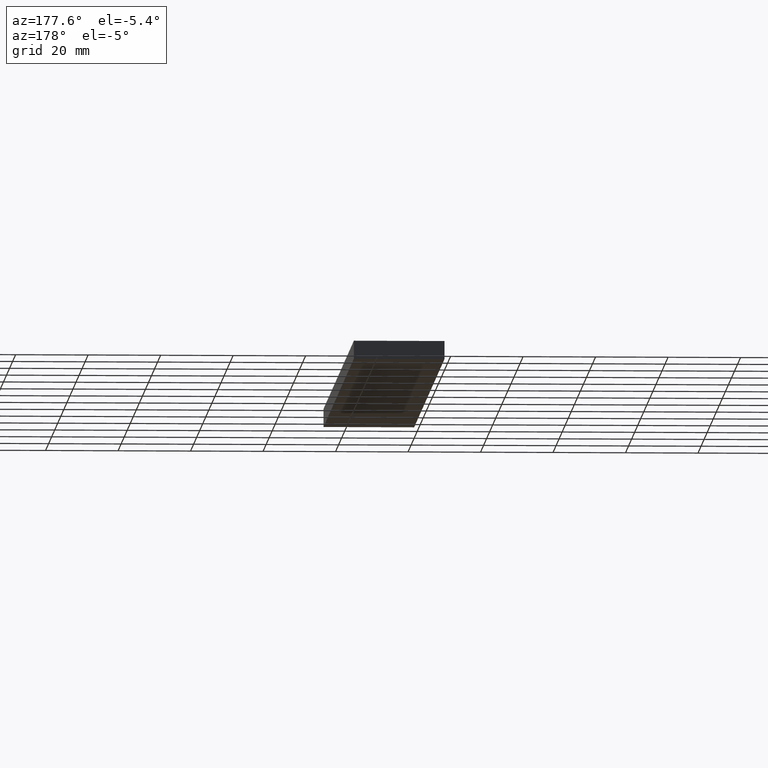
[diagram: clean part render]
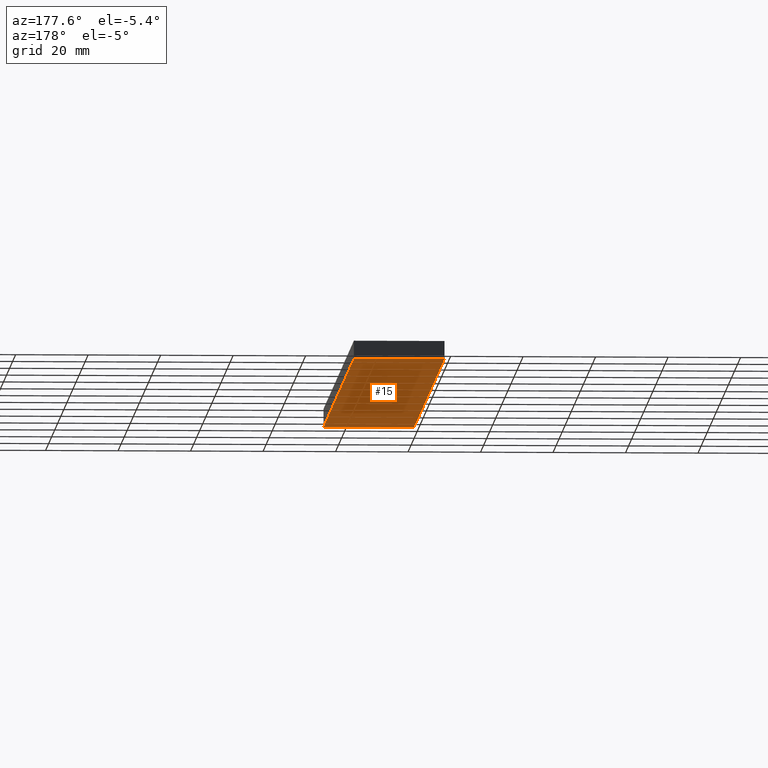
[diagram: same view with one face highlighted and labeled with its STEP entity id]
A machine part, auxiliary view. The second image highlights one B-rep face of the part: STEP entity #15.
In plain terms, the highlighted planar face has unit normal (0, 0, -1).
Its self-contained STEP definition (entity closure, byte-faithful):
#2 = CARTESIAN_POINT ( 'NONE',  ( 25.00000000000000000, 200.0000000000000000, 0.0000000000000000000 ) ) ;
#4 = CARTESIAN_POINT ( 'NONE',  ( 0.0000000000000000000, 0.0000000000000000000, 0.0000000000000000000 ) ) ;
#7 = AXIS2_PLACEMENT_3D ( 'NONE', #88, #212, #160 ) ;
#9 = CARTESIAN_POINT ( 'NONE',  ( 25.00000000000000000, 0.0000000000000000000, 0.0000000000000000000 ) ) ;
#15 = ADVANCED_FACE ( 'NONE', ( #192 ), #211, .T. ) ;
#22 = CARTESIAN_POINT ( 'NONE',  ( 0.0000000000000000000, 1000.000000000000000, 0.0000000000000000000 ) ) ;
#28 = LINE ( 'NONE', #4, #216 ) ;
#29 = EDGE_CURVE ( 'NONE', #218, #98, #231, .T. ) ;
#55 = DIRECTION ( 'NONE',  ( 1.000000000000000000, -0.0000000000000000000, -0.0000000000000000000 ) ) ;
#59 = EDGE_CURVE ( 'NONE', #202, #218, #92, .T. ) ;
#63 = CARTESIAN_POINT ( 'NONE',  ( 0.0000000000000000000, 200.0000000000000000, 0.0000000000000000000 ) ) ;
#69 = DIRECTION ( 'NONE',  ( 0.0000000000000000000, -1.000000000000000000, 0.0000000000000000000 ) ) ;
#81 = VECTOR ( 'NONE', #125, 1000.000000000000000 ) ;
#88 = CARTESIAN_POINT ( 'NONE',  ( 0.0000000000000000000, 1000.000000000000000, 0.0000000000000000000 ) ) ;
#91 = CARTESIAN_POINT ( 'NONE',  ( 25.00000000000000000, 1000.000000000000000, 0.0000000000000000000 ) ) ;
#92 = LINE ( 'NONE', #63, #180 ) ;
#95 = EDGE_CURVE ( 'NONE', #202, #203, #225, .T. ) ;
#98 = VERTEX_POINT ( 'NONE', #9 ) ;
#122 = ORIENTED_EDGE ( 'NONE', *, *, #155, .F. ) ;
#125 = DIRECTION ( 'NONE',  ( 0.0000000000000000000, -1.000000000000000000, 0.0000000000000000000 ) ) ;
#153 = EDGE_LOOP ( 'NONE', ( #122, #195, #198, #156 ) ) ;
#155 = EDGE_CURVE ( 'NONE', #203, #98, #28, .T. ) ;
#156 = ORIENTED_EDGE ( 'NONE', *, *, #29, .T. ) ;
#160 = DIRECTION ( 'NONE',  ( -1.000000000000000000, 0.0000000000000000000, 0.0000000000000000000 ) ) ;
#161 = CARTESIAN_POINT ( 'NONE',  ( 0.0000000000000000000, 0.0000000000000000000, 0.0000000000000000000 ) ) ;
#180 = VECTOR ( 'NONE', #55, 1000.000000000000000 ) ;
#191 = CARTESIAN_POINT ( 'NONE',  ( 0.0000000000000000000, 200.0000000000000000, 0.0000000000000000000 ) ) ;
#192 = FACE_OUTER_BOUND ( 'NONE', #153, .T. ) ;
#195 = ORIENTED_EDGE ( 'NONE', *, *, #95, .F. ) ;
#198 = ORIENTED_EDGE ( 'NONE', *, *, #59, .T. ) ;
#202 = VERTEX_POINT ( 'NONE', #191 ) ;
#203 = VERTEX_POINT ( 'NONE', #161 ) ;
#211 = PLANE ( 'NONE',  #7 ) ;
#212 = DIRECTION ( 'NONE',  ( 0.0000000000000000000, 0.0000000000000000000, -1.000000000000000000 ) ) ;
#216 = VECTOR ( 'NONE', #230, 1000.000000000000000 ) ;
#218 = VERTEX_POINT ( 'NONE', #2 ) ;
#225 = LINE ( 'NONE', #22, #81 ) ;
#230 = DIRECTION ( 'NONE',  ( 1.000000000000000000, -0.0000000000000000000, -0.0000000000000000000 ) ) ;
#231 = LINE ( 'NONE', #91, #235 ) ;
#235 = VECTOR ( 'NONE', #69, 1000.000000000000000 ) ;